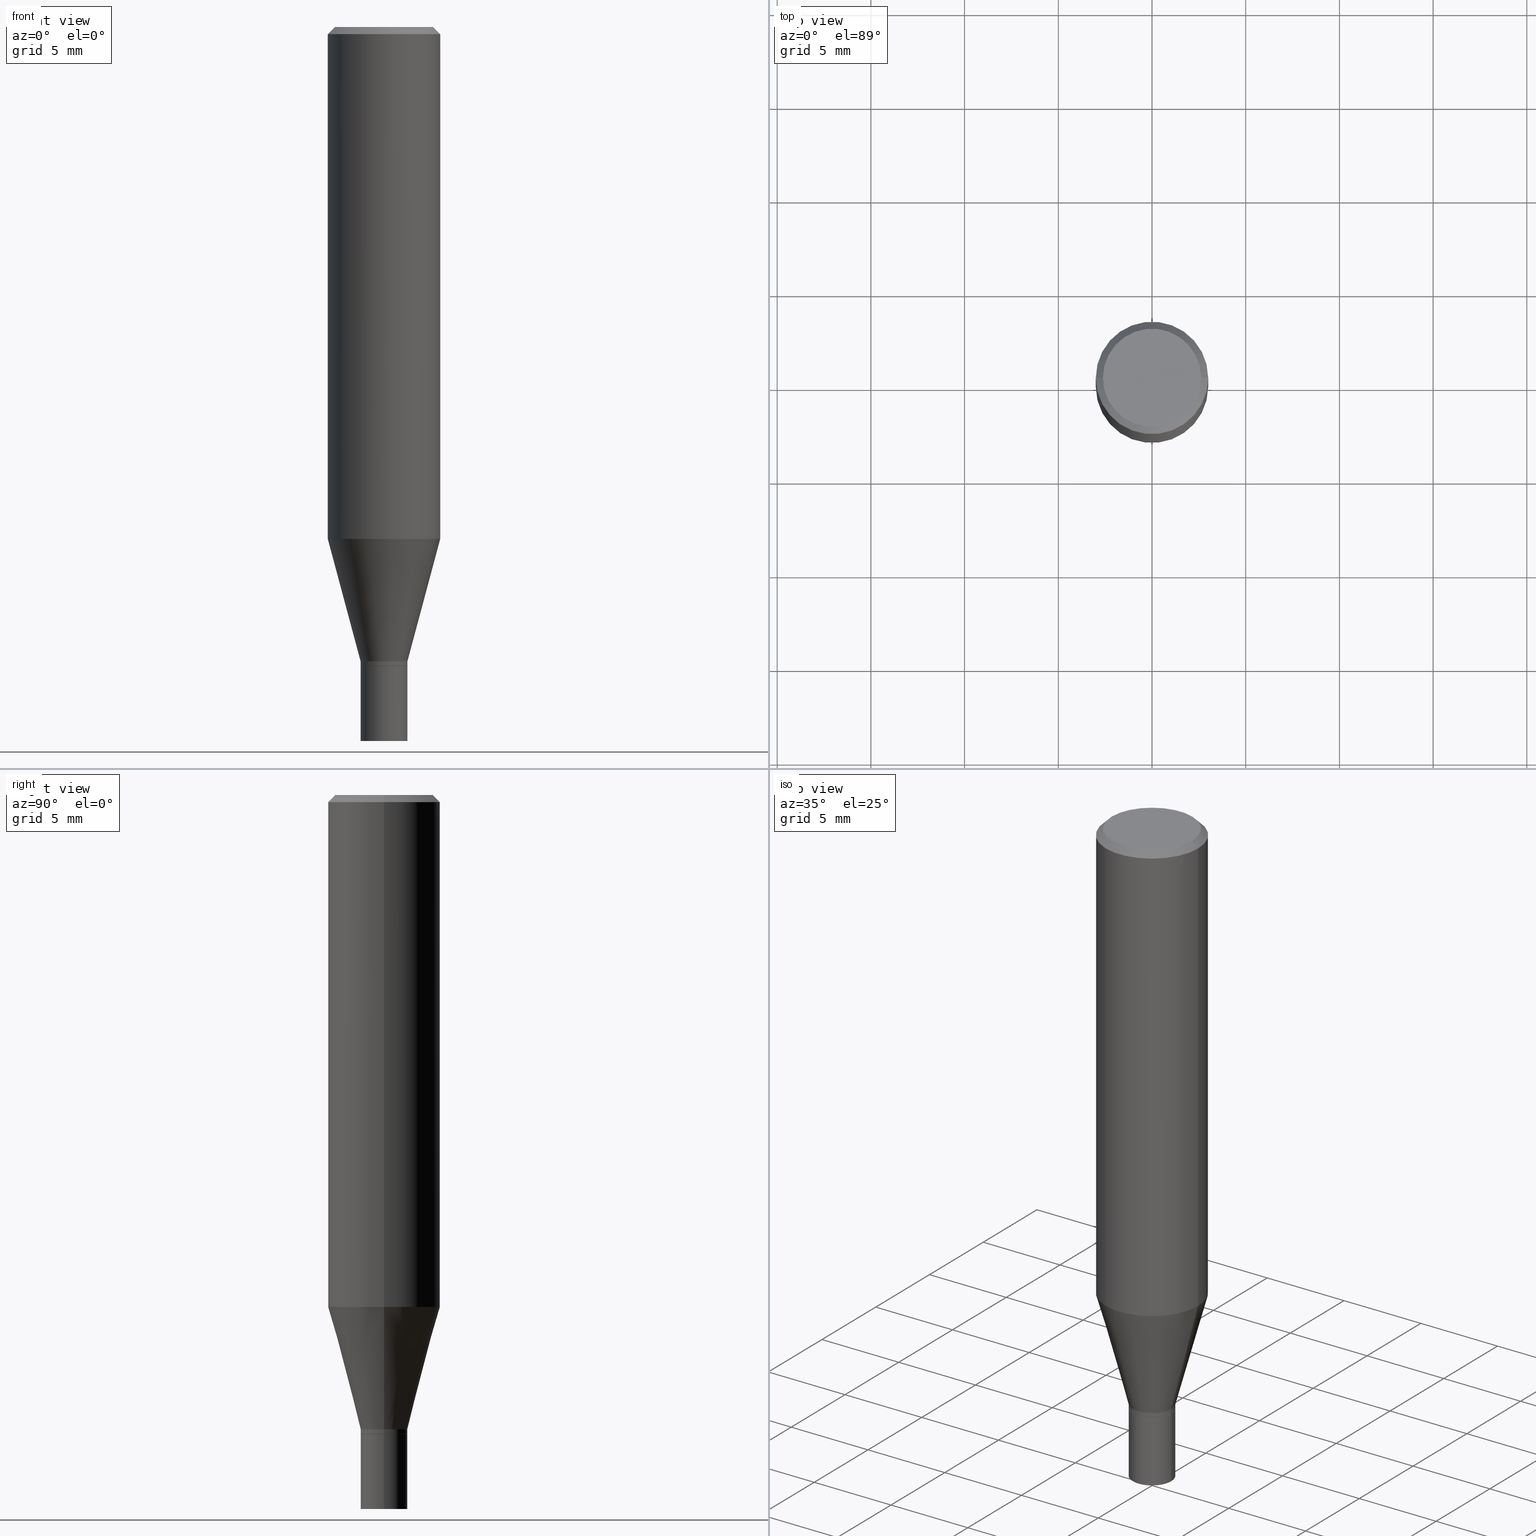
[diagram: canonical four-view strip — front | top / right | iso, engineering-drawing reading convention]
A machine part, canonical four-view strip (front | top / right | iso — engineering-drawing reading convention). The complete STEP part file that produces these views, byte-faithful:
ISO-10303-21;
HEADER;
FILE_DESCRIPTION (( 'STEP AP203' ),
    '1' );
FILE_NAME ('05336.STEP',
    '2024-03-14T18:09:04',
    ( '' ),
    ( '' ),
    'SwSTEP 2.0',
    'SolidWorks 2023',
    '' );
FILE_SCHEMA (( 'CONFIG_CONTROL_DESIGN' ));
ENDSEC;

DATA;
#1 = ORIENTED_EDGE ( 'NONE', *, *, #40, .F. ) ;
#2 = MANIFOLD_SOLID_BREP ( 'Body-Move/Copy2[2]', #251 ) ;
#3 = FACE_OUTER_BOUND ( 'NONE', #30, .T. ) ;
#4 = CARTESIAN_POINT ( 'NONE',  ( 0.000000000000000000, 0.000000000000000000, 0.000000000000000000 ) ) ;
#5 = CC_DESIGN_PERSON_AND_ORGANIZATION_ASSIGNMENT ( #220, #182, ( #24 ) ) ;
#6 = EDGE_CURVE ( 'NONE', #429, #231, #227, .T. ) ;
#7 = FACE_OUTER_BOUND ( 'NONE', #206, .T. ) ;
#8 = APPROVAL_DATE_TIME ( #214, #73 ) ;
#9 = ORIENTED_EDGE ( 'NONE', *, *, #216, .F. ) ;
#10 = APPLICATION_PROTOCOL_DEFINITION ( 'international standard', 'config_control_design', 1994, #336 ) ;
#11 = VECTOR ( 'NONE', #34, 39.37007874015748143 ) ;
#12 = CYLINDRICAL_SURFACE ( 'NONE', #141, 0.04920000000000000068 ) ;
#13 = CIRCLE ( 'NONE', #218, 0.1180999999999999966 ) ;
#14 = PERSON_AND_ORGANIZATION ( #376, #135 ) ;
#15 = PLANE ( 'NONE',  #313 ) ;
#16 = PERSON_AND_ORGANIZATION ( #376, #135 ) ;
#17 = DIRECTION ( 'NONE',  ( 1.000000000000000000, -6.982962677686273810E-15, 0.000000000000000000 ) ) ;
#18 = CARTESIAN_POINT ( 'NONE',  ( 3.283041872303546419E-29, -4.687313697396923253E-15, -1.342500000000000249 ) ) ;
#19 = VECTOR ( 'NONE', #275, 39.37007874015748143 ) ;
#20 = EDGE_LOOP ( 'NONE', ( #60, #280 ) ) ;
#21 = CC_DESIGN_DATE_AND_TIME_ASSIGNMENT ( #442, #262, ( #312 ) ) ;
#22 = CARTESIAN_POINT ( 'NONE',  ( 3.668203209277705088E-31, -5.237222008264718399E-17, -0.01499999999999999944 ) ) ;
#23 = DIRECTION ( 'NONE',  ( -2.445468806185136597E-29, 3.491481338843145583E-15, 1.000000000000000000 ) ) ;
#24 = PRODUCT ( '05336', '05336', '', ( #253 ) ) ;
#25 = APPROVAL_PERSON_ORGANIZATION ( #258, #73, #409 ) ;
#26 = ADVANCED_FACE ( 'NONE', ( #74 ), #12, .T. ) ;
#27 = DIRECTION ( 'NONE',  ( -0.2588190451025214611, 5.211531920934551042E-15, 0.9659258262890682012 ) ) ;
#28 = ORIENTED_EDGE ( 'NONE', *, *, #133, .T. ) ;
#29 = DIRECTION ( 'NONE',  ( -2.445468806185136877E-29, 3.491481338843145188E-15, 1.000000000000000000 ) ) ;
#30 = EDGE_LOOP ( 'NONE', ( #260, #422, #28, #124 ) ) ;
#31 = DIRECTION ( 'NONE',  ( -2.445468806185136597E-29, 3.491481338843145583E-15, 1.000000000000000000 ) ) ;
#32 = EDGE_CURVE ( 'NONE', #371, #458, #181, .T. ) ;
#33 = ORIENTED_EDGE ( 'NONE', *, *, #32, .F. ) ;
#34 = DIRECTION ( 'NONE',  ( -2.445468806185136877E-29, 3.491481338843145188E-15, 1.000000000000000000 ) ) ;
#35 = EDGE_LOOP ( 'NONE', ( #94, #173, #130, #1 ) ) ;
#36 = CARTESIAN_POINT ( 'NONE',  ( 3.283041872303546419E-29, -4.687313697396923253E-15, -1.342500000000000249 ) ) ;
#37 = CARTESIAN_POINT ( 'NONE',  ( 3.668203209277705088E-31, -5.237222008264718399E-17, -0.01499999999999999944 ) ) ;
#38 = ADVANCED_FACE ( 'NONE', ( #7 ), #433, .F. ) ;
#39 = AXIS2_PLACEMENT_3D ( 'NONE', #171, #233, #434 ) ;
#40 = EDGE_CURVE ( 'NONE', #231, #429, #288, .T. ) ;
#41 = DIRECTION ( 'NONE',  ( -2.445468806185136597E-29, 3.491481338843145583E-15, 1.000000000000000000 ) ) ;
#42 = CARTESIAN_POINT ( 'NONE',  ( -0.04919999999999991741, 3.495870259939687046E-16, -2.420116064405409213E-30 ) ) ;
#43 = COORDINATED_UNIVERSAL_TIME_OFFSET ( 5, 0, .BEHIND. ) ;
#44 = DIRECTION ( 'NONE',  ( -2.445468806185136597E-29, 3.491481338843145583E-15, 1.000000000000000000 ) ) ;
#45 = ADVANCED_FACE ( 'NONE', ( #207 ), #143, .T. ) ;
#46 = LOCAL_TIME ( 14, 9, 4.000000000000000000, #147 ) ;
#47 = DIRECTION ( 'NONE',  ( 0.7071067811865656694, -2.468850131082446387E-15, 0.7071067811865294761 ) ) ;
#48 = CONICAL_SURFACE ( 'NONE', #305, 0.04919999999999991741, 0.2617993877991501295 ) ;
#49 = PERSON_AND_ORGANIZATION ( #376, #135 ) ;
#50 = DIRECTION ( 'NONE',  ( 2.445468806185136597E-29, -3.491481338843145583E-15, -1.000000000000000000 ) ) ;
#51 = LINE ( 'NONE', #292, #430 ) ;
#52 = ORIENTED_EDGE ( 'NONE', *, *, #108, .F. ) ;
#53 = ADVANCED_FACE ( 'NONE', ( #149 ), #398, .T. ) ;
#54 = DIRECTION ( 'NONE',  ( 2.438088387897960049E-29, -3.491481338843145188E-15, -1.000000000000000000 ) ) ;
#55 = CC_DESIGN_APPROVAL ( #240, ( #62 ) ) ;
#56 = ORIENTED_EDGE ( 'NONE', *, *, #32, .T. ) ;
#57 = CONICAL_SURFACE ( 'NONE', #105, 0.1180999999999999966, 0.7853981633974160825 ) ;
#58 = DIRECTION ( 'NONE',  ( -2.445468806185136597E-29, 3.491481338843145583E-15, 1.000000000000000000 ) ) ;
#59 = DIRECTION ( 'NONE',  ( 1.000000000000000000, -6.982962677686261977E-15, 0.000000000000000000 ) ) ;
#60 = ORIENTED_EDGE ( 'NONE', *, *, #177, .F. ) ;
#61 = PLANE ( 'NONE',  #437 ) ;
#62 = SECURITY_CLASSIFICATION ( '', '', #112 ) ;
#63 = ORIENTED_EDGE ( 'NONE', *, *, #177, .T. ) ;
#64 = CARTESIAN_POINT ( 'NONE',  ( -0.04919999999999992435, -4.335980930733533094E-15, -1.342000000000000304 ) ) ;
#65 = ORIENTED_EDGE ( 'NONE', *, *, #340, .T. ) ;
#66 = CARTESIAN_POINT ( 'NONE',  ( 0.04919999999999991741, -4.995960647750656128E-15, -1.332500000000000018 ) ) ;
#67 = EDGE_LOOP ( 'NONE', ( #386, #96, #419, #180 ) ) ;
#68 = VERTEX_POINT ( 'NONE', #359 ) ;
#69 = AXIS2_PLACEMENT_3D ( 'NONE', #286, #249, #114 ) ;
#70 = CONICAL_SURFACE ( 'NONE', #296, 0.04870000000000000023, 0.7853981633974739252 ) ;
#71 = CIRCLE ( 'NONE', #69, 0.04870000000000000023 ) ;
#72 = VERTEX_POINT ( 'NONE', #435 ) ;
#73 = APPROVAL ( #436, 'UNSPECIFIED' ) ;
#74 = FACE_OUTER_BOUND ( 'NONE', #35, .T. ) ;
#75 = ADVANCED_FACE ( 'NONE', ( #111 ), #261, .T. ) ;
#76 = DIRECTION ( 'NONE',  ( 1.000000000000000000, -6.982962677686266711E-15, 4.876176775795935793E-29 ) ) ;
#77 = CC_DESIGN_SECURITY_CLASSIFICATION ( #62, ( #211 ) ) ;
#78 = PERSON_AND_ORGANIZATION ( #376, #135 ) ;
#79 = DIRECTION ( 'NONE',  ( 1.000000000000000000, -6.982962677686272233E-15, 0.000000000000000000 ) ) ;
#80 = COORDINATED_UNIVERSAL_TIME_OFFSET ( 5, 0, .BEHIND. ) ;
#81 = EDGE_CURVE ( 'NONE', #139, #204, #303, .T. ) ;
#82 = CARTESIAN_POINT ( 'NONE',  ( 3.668203209277705088E-31, -5.237222008264718399E-17, -0.01499999999999999944 ) ) ;
#83 = DIRECTION ( 'NONE',  ( -2.445468806185136597E-29, 3.491481338843145583E-15, 1.000000000000000000 ) ) ;
#84 = APPROVAL_STATUS ( 'not_yet_approved' ) ;
#85 = PLANE ( 'NONE',  #174 ) ;
#86 = DATE_AND_TIME ( #144, #120 ) ;
#87 = DIRECTION ( 'NONE',  ( -2.445468806185136597E-29, 3.491481338843145583E-15, 1.000000000000000000 ) ) ;
#88 = DIRECTION ( 'NONE',  ( 1.000000000000000000, -6.982962677686265133E-15, 0.000000000000000000 ) ) ;
#89 = PRODUCT_RELATED_PRODUCT_CATEGORY ( 'detail', '', ( #24 ) ) ;
#90 = CARTESIAN_POINT ( 'NONE',  ( -2.356111900284270779E-44, 3.363903359250623461E-30, 9.634602143871708828E-16 ) ) ;
#91 = CC_DESIGN_APPROVAL ( #403, ( #312 ) ) ;
#92 = AXIS2_PLACEMENT_3D ( 'NONE', #438, #41, #217 ) ;
#93 = DIRECTION ( 'NONE',  ( -2.445468806185136597E-29, 3.491481338843145583E-15, 1.000000000000000000 ) ) ;
#94 = ORIENTED_EDGE ( 'NONE', *, *, #340, .F. ) ;
#95 = CARTESIAN_POINT ( 'NONE',  ( -0.04870000000000000023, -4.341279385081754708E-15, -1.342500000000000249 ) ) ;
#96 = ORIENTED_EDGE ( 'NONE', *, *, #423, .T. ) ;
#97 = DIRECTION ( 'NONE',  ( 1.000000000000000000, -6.982962677686266711E-15, 4.876176775795935793E-29 ) ) ;
#98 = VECTOR ( 'NONE', #27, 39.37007874015747433 ) ;
#99 = ORIENTED_EDGE ( 'NONE', *, *, #465, .F. ) ;
#100 = DIRECTION ( 'NONE',  ( 1.000000000000000000, -6.982962677686272233E-15, 0.000000000000000000 ) ) ;
#101 = ORIENTED_EDGE ( 'NONE', *, *, #334, .F. ) ;
#102 =( CONVERSION_BASED_UNIT ( 'INCH', #425 ) LENGTH_UNIT ( ) NAMED_UNIT ( #107 ) );
#103 = ORIENTED_EDGE ( 'NONE', *, *, #443, .F. ) ;
#104 = ORIENTED_EDGE ( 'NONE', *, *, #216, .T. ) ;
#105 = AXIS2_PLACEMENT_3D ( 'NONE', #37, #254, #400 ) ;
#106 = VECTOR ( 'NONE', #294, 39.37007874015748143 ) ;
#107 = DIMENSIONAL_EXPONENTS ( 1.000000000000000000, 0.000000000000000000, 0.000000000000000000, 0.000000000000000000, 0.000000000000000000, 0.000000000000000000, 0.000000000000000000 ) ;
#108 = EDGE_CURVE ( 'NONE', #72, #337, #71, .T. ) ;
#109 = CARTESIAN_POINT ( 'NONE',  ( 0.000000000000000000, 0.000000000000000000, 0.000000000000000000 ) ) ;
#110 = DIRECTION ( 'NONE',  ( -2.445468806185136597E-29, 3.491481338843145583E-15, 1.000000000000000000 ) ) ;
#111 = FACE_OUTER_BOUND ( 'NONE', #264, .T. ) ;
#112 = SECURITY_CLASSIFICATION_LEVEL ( 'unclassified' ) ;
#113 = VECTOR ( 'NONE', #145, 39.37007874015748143 ) ;
#114 = DIRECTION ( 'NONE',  ( 1.000000000000000000, -6.982962677686271444E-15, 0.000000000000000000 ) ) ;
#115 = PERSON_AND_ORGANIZATION_ROLE ( 'creator' ) ;
#116 = CARTESIAN_POINT ( 'NONE',  ( 0.04919999999999992435, -5.029129720469666274E-15, -1.342000000000000304 ) ) ;
#117 = CARTESIAN_POINT ( 'NONE',  ( 0.000000000000000000, 0.000000000000000000, 0.000000000000000000 ) ) ;
#118 = DIRECTION ( 'NONE',  ( -2.445468806185136597E-29, 3.491481338843145583E-15, 1.000000000000000000 ) ) ;
#119 = ORIENTED_EDGE ( 'NONE', *, *, #393, .F. ) ;
#120 = LOCAL_TIME ( 14, 9, 4.000000000000000000, #43 ) ;
#121 = CARTESIAN_POINT ( 'NONE',  ( 3.576687321579069994E-29, -5.368277968210015545E-15, -1.500000000000000222 ) ) ;
#122 = ADVANCED_FACE ( 'NONE', ( #3 ), #57, .T. ) ;
#123 = DIRECTION ( 'NONE',  ( -2.445468806185136597E-29, 3.491481338843145583E-15, 1.000000000000000000 ) ) ;
#124 = ORIENTED_EDGE ( 'NONE', *, *, #271, .F. ) ;
#125 = DIRECTION ( 'NONE',  ( -2.445468806185136877E-29, 3.491481338843145188E-15, 1.000000000000000000 ) ) ;
#126 = AXIS2_PLACEMENT_3D ( 'NONE', #396, #318, #432 ) ;
#127 = CARTESIAN_POINT ( 'NONE',  ( 3.258587184241694874E-29, -4.652398884008491604E-15, -1.332500000000000018 ) ) ;
#128 = AXIS2_PLACEMENT_3D ( 'NONE', #421, #169, #100 ) ;
#129 = CARTESIAN_POINT ( 'NONE',  ( 0.04919999999999991741, -4.995960647750656128E-15, -1.332500000000000018 ) ) ;
#130 = ORIENTED_EDGE ( 'NONE', *, *, #465, .T. ) ;
#131 = CARTESIAN_POINT ( 'NONE',  ( 0.04920000000000000068, -3.435617637421643269E-16, 2.399078973691600472E-30 ) ) ;
#132 = ORIENTED_EDGE ( 'NONE', *, *, #271, .T. ) ;
#133 = EDGE_CURVE ( 'NONE', #170, #311, #252, .T. ) ;
#134 = LINE ( 'NONE', #195, #98 ) ;
#135 = ORGANIZATION ( 'UNSPECIFIED', 'UNSPECIFIED', '' ) ;
#136 = VERTEX_POINT ( 'NONE', #140 ) ;
#137 = DIRECTION ( 'NONE',  ( 0.2588190451025214611, 1.565188264969621573E-15, 0.9659258262890682012 ) ) ;
#138 = ORIENTED_EDGE ( 'NONE', *, *, #157, .T. ) ;
#139 = VERTEX_POINT ( 'NONE', #179 ) ;
#140 = CARTESIAN_POINT ( 'NONE',  ( -0.1031000000000000111, 7.461295621107793201E-16, 9.634602143871657552E-16 ) ) ;
#141 = AXIS2_PLACEMENT_3D ( 'NONE', #4, #142, #76 ) ;
#142 = DIRECTION ( 'NONE',  ( -2.445468806185136597E-29, 3.491481338843145583E-15, 1.000000000000000000 ) ) ;
#143 = CYLINDRICAL_SURFACE ( 'NONE', #366, 0.04920000000000000068 ) ;
#144 = CALENDAR_DATE ( 2024, 14, 3 ) ;
#145 = DIRECTION ( 'NONE',  ( -2.445468806185136877E-29, 3.491481338843145188E-15, 1.000000000000000000 ) ) ;
#146 = AXIS2_PLACEMENT_3D ( 'NONE', #412, #58, #17 ) ;
#147 = COORDINATED_UNIVERSAL_TIME_OFFSET ( 5, 0, .BEHIND. ) ;
#148 = AXIS2_PLACEMENT_3D ( 'NONE', #328, #93, #338 ) ;
#149 = FACE_OUTER_BOUND ( 'NONE', #411, .T. ) ;
#150 = CALENDAR_DATE ( 2024, 14, 3 ) ;
#151 = DIRECTION ( 'NONE',  ( 1.000000000000000000, -6.982962677686265922E-15, 4.876176775795935793E-29 ) ) ;
#152 = DATE_TIME_ROLE ( 'classification_date' ) ;
#153 = DIRECTION ( 'NONE',  ( -0.7071067811865247021, 2.468850131082017641E-15, -0.7071067811865703323 ) ) ;
#154 =( GEOMETRIC_REPRESENTATION_CONTEXT ( 3 ) GLOBAL_UNCERTAINTY_ASSIGNED_CONTEXT ( ( #158 ) ) GLOBAL_UNIT_ASSIGNED_CONTEXT ( ( #102, #343, #284 ) ) REPRESENTATION_CONTEXT ( 'NONE', 'WORKASPACE' ) );
#155 = LINE ( 'NONE', #302, #106 ) ;
#156 = DIRECTION ( 'NONE',  ( 1.000000000000000000, -6.982962677686266711E-15, 0.000000000000000000 ) ) ;
#157 = EDGE_CURVE ( 'NONE', #371, #164, #161, .T. ) ;
#158 = UNCERTAINTY_MEASURE_WITH_UNIT (LENGTH_MEASURE( 1.000000000000000082E-05 ), #102, 'distance_accuracy_value', 'NONE');
#159 = CARTESIAN_POINT ( 'NONE',  ( -0.04870000000000000023, -4.338630157907644295E-15, -1.342500000000000249 ) ) ;
#160 = MANIFOLD_SOLID_BREP ( 'Body-Move/Copy2[1]', #205 ) ;
#161 = CIRCLE ( 'NONE', #324, 0.04919999999999992435 ) ;
#162 = LINE ( 'NONE', #390, #415 ) ;
#163 = CONICAL_SURFACE ( 'NONE', #325, 0.04870000000000000023, 0.7853981633974739252 ) ;
#164 = VERTEX_POINT ( 'NONE', #116 ) ;
#165 = AXIS2_PLACEMENT_3D ( 'NONE', #259, #414, #330 ) ;
#166 = DIRECTION ( 'NONE',  ( -2.445468806185136597E-29, 3.491481338843145583E-15, 1.000000000000000000 ) ) ;
#167 = ORIENTED_EDGE ( 'NONE', *, *, #247, .T. ) ;
#168 = ADVANCED_FACE ( 'NONE', ( #283 ), #209, .T. ) ;
#169 = DIRECTION ( 'NONE',  ( -2.445468806185136597E-29, 3.491481338843145583E-15, 1.000000000000000000 ) ) ;
#170 = VERTEX_POINT ( 'NONE', #362 ) ;
#171 = CARTESIAN_POINT ( 'NONE',  ( -2.356111900284270779E-44, 3.363903359250623461E-30, 9.634602143871708828E-16 ) ) ;
#172 = AXIS2_PLACEMENT_3D ( 'NONE', #175, #31, #59 ) ;
#173 = ORIENTED_EDGE ( 'NONE', *, *, #372, .T. ) ;
#174 = AXIS2_PLACEMENT_3D ( 'NONE', #263, #54, #446 ) ;
#175 = CARTESIAN_POINT ( 'NONE',  ( 3.668203209277704895E-29, -5.237222008264718177E-15, -1.500000000000000222 ) ) ;
#176 = ORIENTED_EDGE ( 'NONE', *, *, #133, .F. ) ;
#177 = EDGE_CURVE ( 'NONE', #350, #68, #392, .T. ) ;
#178 = DIRECTION ( 'NONE',  ( 1.000000000000000000, -6.982962677686273810E-15, 0.000000000000000000 ) ) ;
#179 = CARTESIAN_POINT ( 'NONE',  ( 0.1180999999999999966, -4.579293198051621365E-15, -1.075361699358504897 ) ) ;
#180 = ORIENTED_EDGE ( 'NONE', *, *, #304, .F. ) ;
#181 = LINE ( 'NONE', #42, #113 ) ;
#182 = PERSON_AND_ORGANIZATION_ROLE ( 'design_owner' ) ;
#183 = DIRECTION ( 'NONE',  ( -2.445468806185136597E-29, 3.491481338843145583E-15, 1.000000000000000000 ) ) ;
#184 = APPROVAL_PERSON_ORGANIZATION ( #404, #403, #440 ) ;
#185 = FACE_OUTER_BOUND ( 'NONE', #236, .T. ) ;
#186 = ADVANCED_FACE ( 'NONE', ( #185 ), #85, .F. ) ;
#187 = PERSON_AND_ORGANIZATION_ROLE ( 'creator' ) ;
#188 = DIRECTION ( 'NONE',  ( -2.445468806185136877E-29, 3.491481338843145188E-15, 1.000000000000000000 ) ) ;
#189 = COORDINATED_UNIVERSAL_TIME_OFFSET ( 5, 0, .BEHIND. ) ;
#190 = CARTESIAN_POINT ( 'NONE',  ( 3.668203209277705088E-31, -5.237222008264718399E-17, -0.01499999999999999944 ) ) ;
#191 = DIRECTION ( 'NONE',  ( 1.000000000000000000, -6.982962677686261977E-15, 0.000000000000000000 ) ) ;
#192 = ORIENTED_EDGE ( 'NONE', *, *, #379, .T. ) ;
#193 = CC_DESIGN_DATE_AND_TIME_ASSIGNMENT ( #86, #152, ( #62 ) ) ;
#194 = CARTESIAN_POINT ( 'NONE',  ( 2.629763491147462356E-29, -3.754605305816872313E-15, -1.075361699358504897 ) ) ;
#195 = CARTESIAN_POINT ( 'NONE',  ( -0.04919999999999991741, -4.302811858014522949E-15, -1.332500000000000018 ) ) ;
#196 = EDGE_CURVE ( 'NONE', #139, #170, #51, .T. ) ;
#197 = ORIENTED_EDGE ( 'NONE', *, *, #428, .T. ) ;
#198 = EDGE_CURVE ( 'NONE', #458, #389, #354, .T. ) ;
#199 = CARTESIAN_POINT ( 'NONE',  ( 3.283041872303546419E-29, -4.687313697396923253E-15, -1.342500000000000249 ) ) ;
#200 = ORIENTED_EDGE ( 'NONE', *, *, #196, .F. ) ;
#201 = FACE_OUTER_BOUND ( 'NONE', #274, .T. ) ;
#202 = ORIENTED_EDGE ( 'NONE', *, *, #40, .T. ) ;
#203 = CIRCLE ( 'NONE', #226, 0.04870000000000000023 ) ;
#204 = VERTEX_POINT ( 'NONE', #406 ) ;
#205 = CLOSED_SHELL ( 'NONE', ( #45, #342, #26, #186 ) ) ;
#206 = EDGE_LOOP ( 'NONE', ( #317, #310 ) ) ;
#207 = FACE_OUTER_BOUND ( 'NONE', #426, .T. ) ;
#208 = CC_DESIGN_PERSON_AND_ORGANIZATION_ASSIGNMENT ( #14, #115, ( #312 ) ) ;
#209 = CYLINDRICAL_SURFACE ( 'NONE', #439, 0.1180999999999999966 ) ;
#210 = ADVANCED_FACE ( 'NONE', ( #370 ), #346, .T. ) ;
#211 = PRODUCT_DEFINITION_FORMATION_WITH_SPECIFIED_SOURCE ( 'ANY', '', #24, .NOT_KNOWN. ) ;
#212 = DIRECTION ( 'NONE',  ( 0.000000000000000000, 0.000000000000000000, 1.000000000000000000 ) ) ;
#213 = CARTESIAN_POINT ( 'NONE',  ( 3.281819137900453618E-29, -4.685567956727501750E-15, -1.342000000000000304 ) ) ;
#214 = DATE_AND_TIME ( #150, #452 ) ;
#215 = CARTESIAN_POINT ( 'NONE',  ( 7.199434520694541042E-16, 0.1031000000000000111, 1.217583811588571567E-16 ) ) ;
#216 = EDGE_CURVE ( 'NONE', #311, #170, #13, .T. ) ;
#217 = DIRECTION ( 'NONE',  ( 1.000000000000000000, -6.982962677686261977E-15, 0.000000000000000000 ) ) ;
#218 = AXIS2_PLACEMENT_3D ( 'NONE', #22, #123, #156 ) ;
#219 = VECTOR ( 'NONE', #29, 39.37007874015748143 ) ;
#220 = PERSON_AND_ORGANIZATION ( #376, #135 ) ;
#221 = CIRCLE ( 'NONE', #146, 0.04919999999999991741 ) ;
#222 = DIRECTION ( 'NONE',  ( -2.445468806185136597E-29, 3.491481338843145583E-15, 1.000000000000000000 ) ) ;
#223 = FACE_OUTER_BOUND ( 'NONE', #273, .T. ) ;
#224 = VERTEX_POINT ( 'NONE', #444 ) ;
#225 = DIRECTION ( 'NONE',  ( 1.000000000000000000, -6.982962677686271444E-15, 0.000000000000000000 ) ) ;
#226 = AXIS2_PLACEMENT_3D ( 'NONE', #278, #166, #230 ) ;
#227 = CIRCLE ( 'NONE', #345, 0.04920000000000000068 ) ;
#228 = FACE_OUTER_BOUND ( 'NONE', #344, .T. ) ;
#229 = CYLINDRICAL_SURFACE ( 'NONE', #268, 0.04919999999999991741 ) ;
#230 = DIRECTION ( 'NONE',  ( 1.000000000000000000, -6.982962677686271444E-15, 0.000000000000000000 ) ) ;
#231 = VERTEX_POINT ( 'NONE', #267 ) ;
#232 = CIRCLE ( 'NONE', #39, 0.1031000000000000111 ) ;
#233 = DIRECTION ( 'NONE',  ( -2.445468806185136597E-29, 3.491481338843145583E-15, 1.000000000000000000 ) ) ;
#234 = ORIENTED_EDGE ( 'NONE', *, *, #428, .F. ) ;
#235 = DIRECTION ( 'NONE',  ( -2.438088387897960049E-29, 3.491481338843145188E-15, 1.000000000000000000 ) ) ;
#236 = EDGE_LOOP ( 'NONE', ( #348, #202 ) ) ;
#237 = EDGE_CURVE ( 'NONE', #224, #136, #326, .T. ) ;
#238 = DIRECTION ( 'NONE',  ( 1.000000000000000000, -6.982962677686265922E-15, 4.876176775795935793E-29 ) ) ;
#239 = ORIENTED_EDGE ( 'NONE', *, *, #304, .T. ) ;
#240 = APPROVAL ( #255, 'UNSPECIFIED' ) ;
#241 = VECTOR ( 'NONE', #188, 39.37007874015748143 ) ;
#242 = APPROVAL_PERSON_ORGANIZATION ( #78, #240, #293 ) ;
#243 = ORIENTED_EDGE ( 'NONE', *, *, #6, .F. ) ;
#244 = AXIS2_PLACEMENT_3D ( 'NONE', #109, #319, #402 ) ;
#245 = DIRECTION ( 'NONE',  ( 2.438088387897960049E-29, -3.491481338843145188E-15, -1.000000000000000000 ) ) ;
#246 = DIRECTION ( 'NONE',  ( 1.000000000000000000, -6.982962677686266711E-15, 4.876176775795936353E-29 ) ) ;
#247 = EDGE_CURVE ( 'NONE', #164, #389, #417, .T. ) ;
#248 = DATE_AND_TIME ( #297, #46 ) ;
#249 = DIRECTION ( 'NONE',  ( -2.445468806185136597E-29, 3.491481338843145583E-15, 1.000000000000000000 ) ) ;
#250 = LOCAL_TIME ( 14, 9, 4.000000000000000000, #364 ) ;
#251 = CLOSED_SHELL ( 'NONE', ( #287, #456, #122, #168, #75, #256, #53, #210, #38, #420, #322, #408 ) ) ;
#252 = CIRCLE ( 'NONE', #315, 0.1180999999999999966 ) ;
#253 = MECHANICAL_CONTEXT ( 'NONE', #336, 'mechanical' ) ;
#254 = DIRECTION ( 'NONE',  ( 2.445468806185136597E-29, -3.491481338843145583E-15, -1.000000000000000000 ) ) ;
#255 = APPROVAL_STATUS ( 'not_yet_approved' ) ;
#256 = ADVANCED_FACE ( 'NONE', ( #341 ), #48, .T. ) ;
#257 = CARTESIAN_POINT ( 'NONE',  ( 0.000000000000000000, 0.000000000000000000, 0.000000000000000000 ) ) ;
#258 = PERSON_AND_ORGANIZATION ( #376, #135 ) ;
#259 = CARTESIAN_POINT ( 'NONE',  ( 0.000000000000000000, 0.000000000000000000, 0.000000000000000000 ) ) ;
#260 = ORIENTED_EDGE ( 'NONE', *, *, #237, .F. ) ;
#261 = CONICAL_SURFACE ( 'NONE', #462, 0.04919999999999991741, 0.2617993877991501295 ) ;
#262 = DATE_TIME_ROLE ( 'creation_date' ) ;
#263 = CARTESIAN_POINT ( 'NONE',  ( 3.435617637421970646E-16, 0.04919999999999531692, -1.342500000000000471 ) ) ;
#264 = EDGE_LOOP ( 'NONE', ( #352, #266, #355, #391 ) ) ;
#265 = CARTESIAN_POINT ( 'NONE',  ( -0.1180999999999999966, 7.723156721521009862E-16, -0.01499999999999999944 ) ) ;
#266 = ORIENTED_EDGE ( 'NONE', *, *, #393, .T. ) ;
#267 = CARTESIAN_POINT ( 'NONE',  ( -0.04920000000000000068, -4.612680826836852060E-15, -1.342500000000000249 ) ) ;
#268 = AXIS2_PLACEMENT_3D ( 'NONE', #351, #272, #97 ) ;
#269 = AXIS2_PLACEMENT_3D ( 'NONE', #90, #118, #410 ) ;
#270 = FACE_OUTER_BOUND ( 'NONE', #20, .T. ) ;
#271 = EDGE_CURVE ( 'NONE', #136, #311, #301, .T. ) ;
#272 = DIRECTION ( 'NONE',  ( -2.445468806185136597E-29, 3.491481338843145583E-15, 1.000000000000000000 ) ) ;
#273 = EDGE_LOOP ( 'NONE', ( #295, #56, #383, #395 ) ) ;
#274 = EDGE_LOOP ( 'NONE', ( #33, #138, #167, #299 ) ) ;
#275 = DIRECTION ( 'NONE',  ( -0.7071067811865656694, 7.493145998870420424E-15, 0.7071067811865294761 ) ) ;
#276 = ORIENTED_EDGE ( 'NONE', *, *, #196, .T. ) ;
#277 = CC_DESIGN_PERSON_AND_ORGANIZATION_ASSIGNMENT ( #16, #373, ( #62 ) ) ;
#278 = CARTESIAN_POINT ( 'NONE',  ( 3.283041872303546419E-29, -4.687313697396923253E-15, -1.342500000000000249 ) ) ;
#279 = EDGE_LOOP ( 'NONE', ( #52, #103 ) ) ;
#280 = ORIENTED_EDGE ( 'NONE', *, *, #372, .F. ) ;
#281 = DIRECTION ( 'NONE',  ( -2.445468806185136597E-29, 3.491481338843145583E-15, 1.000000000000000000 ) ) ;
#282 = AXIS2_PLACEMENT_3D ( 'NONE', #360, #222, #191 ) ;
#283 = FACE_OUTER_BOUND ( 'NONE', #331, .T. ) ;
#284 =( NAMED_UNIT ( * ) SI_UNIT ( $, .STERADIAN. ) SOLID_ANGLE_UNIT ( ) );
#285 = CARTESIAN_POINT ( 'NONE',  ( 0.000000000000000000, 0.000000000000000000, 0.000000000000000000 ) ) ;
#286 = CARTESIAN_POINT ( 'NONE',  ( 3.283041872303546419E-29, -4.687313697396923253E-15, -1.342500000000000249 ) ) ;
#287 = ADVANCED_FACE ( 'NONE', ( #223 ), #450, .T. ) ;
#288 = CIRCLE ( 'NONE', #92, 0.04920000000000000068 ) ;
#289 = APPROVAL_DATE_TIME ( #248, #240 ) ;
#290 = CARTESIAN_POINT ( 'NONE',  ( 3.258587184241694874E-29, -4.652398884008491604E-15, -1.332500000000000018 ) ) ;
#291 = DIRECTION ( 'NONE',  ( 1.000000000000000000, 0.000000000000000000, 0.000000000000000000 ) ) ;
#292 = CARTESIAN_POINT ( 'NONE',  ( 0.1180999999999999966, -8.246878922347480654E-16, 5.758764772215000440E-30 ) ) ;
#293 = APPROVAL_ROLE ( '' ) ;
#294 = DIRECTION ( 'NONE',  ( -2.445468806185136877E-29, 3.491481338843145188E-15, 1.000000000000000000 ) ) ;
#295 = ORIENTED_EDGE ( 'NONE', *, *, #405, .T. ) ;
#296 = AXIS2_PLACEMENT_3D ( 'NONE', #199, #347, #466 ) ;
#297 = CALENDAR_DATE ( 2024, 14, 3 ) ;
#298 = DIRECTION ( 'NONE',  ( 1.000000000000000000, -6.982962677686273810E-15, 0.000000000000000000 ) ) ;
#299 = ORIENTED_EDGE ( 'NONE', *, *, #198, .F. ) ;
#300 = DESIGN_CONTEXT ( 'detailed design', #387, 'design' ) ;
#301 = LINE ( 'NONE', #265, #394 ) ;
#302 = CARTESIAN_POINT ( 'NONE',  ( -0.04920000000000000068, 3.495870259939692963E-16, -2.420116064405413767E-30 ) ) ;
#303 = CIRCLE ( 'NONE', #126, 0.1180999999999999966 ) ;
#304 = EDGE_CURVE ( 'NONE', #72, #164, #335, .T. ) ;
#305 = AXIS2_PLACEMENT_3D ( 'NONE', #127, #87, #298 ) ;
#306 = LINE ( 'NONE', #129, #384 ) ;
#307 = ORIENTED_EDGE ( 'NONE', *, *, #356, .F. ) ;
#308 = CARTESIAN_POINT ( 'NONE',  ( -0.04919999999999991741, -3.609133096449358138E-15, -1.332500000000000018 ) ) ;
#309 = ADVANCED_BREP_SHAPE_REPRESENTATION ( '05336', ( #160, #2, #353 ), #154 ) ;
#310 = ORIENTED_EDGE ( 'NONE', *, *, #237, .T. ) ;
#311 = VERTEX_POINT ( 'NONE', #380 ) ;
#312 = PRODUCT_DEFINITION ( 'UNKNOWN', '', #211, #300 ) ;
#313 = AXIS2_PLACEMENT_3D ( 'NONE', #121, #377, #151 ) ;
#314 = FACE_OUTER_BOUND ( 'NONE', #279, .T. ) ;
#315 = AXIS2_PLACEMENT_3D ( 'NONE', #82, #183, #323 ) ;
#316 = ORIENTED_EDGE ( 'NONE', *, *, #198, .T. ) ;
#317 = ORIENTED_EDGE ( 'NONE', *, *, #358, .T. ) ;
#318 = DIRECTION ( 'NONE',  ( -2.445468806185136597E-29, 3.491481338843145583E-15, 1.000000000000000000 ) ) ;
#319 = DIRECTION ( 'NONE',  ( -2.445468806185136597E-29, 3.491481338843145583E-15, 1.000000000000000000 ) ) ;
#320 = ORIENTED_EDGE ( 'NONE', *, *, #358, .F. ) ;
#321 = DIRECTION ( 'NONE',  ( 1.000000000000000000, -6.982962677686261977E-15, 0.000000000000000000 ) ) ;
#322 = ADVANCED_FACE ( 'NONE', ( #228 ), #163, .T. ) ;
#323 = DIRECTION ( 'NONE',  ( 1.000000000000000000, -6.982962677686266711E-15, 0.000000000000000000 ) ) ;
#324 = AXIS2_PLACEMENT_3D ( 'NONE', #213, #441, #79 ) ;
#325 = AXIS2_PLACEMENT_3D ( 'NONE', #18, #448, #225 ) ;
#326 = CIRCLE ( 'NONE', #269, 0.1031000000000000111 ) ;
#327 = APPROVAL_DATE_TIME ( #369, #403 ) ;
#328 = CARTESIAN_POINT ( 'NONE',  ( 3.258587184241694874E-29, -4.652398884008491604E-15, -1.332500000000000018 ) ) ;
#329 = PERSON_AND_ORGANIZATION ( #376, #135 ) ;
#330 = DIRECTION ( 'NONE',  ( 1.000000000000000000, -6.982962677686266711E-15, 4.876176775795935793E-29 ) ) ;
#331 = EDGE_LOOP ( 'NONE', ( #357, #197, #176, #200 ) ) ;
#332 = EDGE_CURVE ( 'NONE', #389, #458, #221, .T. ) ;
#333 = CALENDAR_DATE ( 2024, 14, 3 ) ;
#334 = EDGE_CURVE ( 'NONE', #204, #139, #378, .T. ) ;
#335 = LINE ( 'NONE', #374, #368 ) ;
#336 = APPLICATION_CONTEXT ( 'configuration controlled 3d designs of mechanical parts and assemblies' ) ;
#337 = VERTEX_POINT ( 'NONE', #159 ) ;
#338 = DIRECTION ( 'NONE',  ( 1.000000000000000000, -6.982962677686273810E-15, 0.000000000000000000 ) ) ;
#339 = CC_DESIGN_PERSON_AND_ORGANIZATION_ASSIGNMENT ( #49, #187, ( #211 ) ) ;
#340 = EDGE_CURVE ( 'NONE', #68, #231, #155, .T. ) ;
#341 = FACE_OUTER_BOUND ( 'NONE', #460, .T. ) ;
#342 = ADVANCED_FACE ( 'NONE', ( #270 ), #15, .F. ) ;
#343 =( NAMED_UNIT ( * ) PLANE_ANGLE_UNIT ( ) SI_UNIT ( $, .RADIAN. ) );
#344 = EDGE_LOOP ( 'NONE', ( #455, #375, #239, #464 ) ) ;
#345 = AXIS2_PLACEMENT_3D ( 'NONE', #36, #281, #321 ) ;
#346 = CONICAL_SURFACE ( 'NONE', #416, 0.1180999999999999966, 0.7853981633974160825 ) ;
#347 = DIRECTION ( 'NONE',  ( -2.445468806185136597E-29, 3.491481338843145583E-15, 1.000000000000000000 ) ) ;
#348 = ORIENTED_EDGE ( 'NONE', *, *, #6, .T. ) ;
#349 = CARTESIAN_POINT ( 'NONE',  ( 0.04920000000000000068, -5.580783772006882701E-15, -1.500000000000000222 ) ) ;
#350 = VERTEX_POINT ( 'NONE', #349 ) ;
#351 = CARTESIAN_POINT ( 'NONE',  ( 0.000000000000000000, 0.000000000000000000, 0.000000000000000000 ) ) ;
#352 = ORIENTED_EDGE ( 'NONE', *, *, #332, .T. ) ;
#353 = AXIS2_PLACEMENT_3D ( 'NONE', #117, #212, #291 ) ;
#354 = CIRCLE ( 'NONE', #148, 0.04919999999999991741 ) ;
#355 = ORIENTED_EDGE ( 'NONE', *, *, #81, .F. ) ;
#356 = EDGE_CURVE ( 'NONE', #224, #170, #162, .T. ) ;
#357 = ORIENTED_EDGE ( 'NONE', *, *, #81, .T. ) ;
#358 = EDGE_CURVE ( 'NONE', #136, #224, #232, .T. ) ;
#359 = CARTESIAN_POINT ( 'NONE',  ( -0.04920000000000000068, -4.612680826836852060E-15, -1.500000000000000222 ) ) ;
#360 = CARTESIAN_POINT ( 'NONE',  ( 3.668203209277704895E-29, -5.237222008264718177E-15, -1.500000000000000222 ) ) ;
#361 = PERSON_AND_ORGANIZATION_ROLE ( 'design_supplier' ) ;
#362 = CARTESIAN_POINT ( 'NONE',  ( 0.1180999999999999966, -8.770601123173952432E-16, -0.01499999999999999944 ) ) ;
#363 = DIRECTION ( 'NONE',  ( 1.000000000000000000, -6.982962677686266711E-15, 4.876176775795935793E-29 ) ) ;
#364 = COORDINATED_UNIVERSAL_TIME_OFFSET ( 5, 0, .BEHIND. ) ;
#365 = DIRECTION ( 'NONE',  ( -1.000000000000000000, 6.982962677686266711E-15, 0.000000000000000000 ) ) ;
#366 = AXIS2_PLACEMENT_3D ( 'NONE', #285, #44, #363 ) ;
#367 = CIRCLE ( 'NONE', #172, 0.04920000000000000068 ) ;
#368 = VECTOR ( 'NONE', #47, 39.37007874015748143 ) ;
#369 = DATE_AND_TIME ( #333, #424 ) ;
#370 = FACE_OUTER_BOUND ( 'NONE', #427, .T. ) ;
#371 = VERTEX_POINT ( 'NONE', #64 ) ;
#372 = EDGE_CURVE ( 'NONE', #68, #350, #367, .T. ) ;
#373 = PERSON_AND_ORGANIZATION_ROLE ( 'classification_officer' ) ;
#374 = CARTESIAN_POINT ( 'NONE',  ( 0.04870000000000000023, -5.027383979800244770E-15, -1.342500000000000249 ) ) ;
#375 = ORIENTED_EDGE ( 'NONE', *, *, #443, .T. ) ;
#376 = PERSON ( 'UNSPECIFIED', 'UNSPECIFIED', 'UNSPECIFIED', ('UNSPECIFIED'), ('UNSPECIFIED'), ('UNSPECIFIED') ) ;
#377 = DIRECTION ( 'NONE',  ( -2.438088387897960049E-29, 3.491481338843145188E-15, 1.000000000000000000 ) ) ;
#378 = CIRCLE ( 'NONE', #461, 0.1180999999999999966 ) ;
#379 = EDGE_CURVE ( 'NONE', #389, #139, #306, .T. ) ;
#380 = CARTESIAN_POINT ( 'NONE',  ( -0.1180999999999999966, -1.064337792017081499E-15, -0.01499999999999999944 ) ) ;
#381 = LINE ( 'NONE', #454, #219 ) ;
#382 = FACE_OUTER_BOUND ( 'NONE', #67, .T. ) ;
#383 = ORIENTED_EDGE ( 'NONE', *, *, #332, .F. ) ;
#384 = VECTOR ( 'NONE', #137, 39.37007874015747433 ) ;
#385 = CARTESIAN_POINT ( 'NONE',  ( 3.283041872303546419E-29, -4.687313697396923253E-15, -1.342500000000000249 ) ) ;
#386 = ORIENTED_EDGE ( 'NONE', *, *, #108, .T. ) ;
#387 = APPLICATION_CONTEXT ( 'configuration controlled 3d designs of mechanical parts and assemblies' ) ;
#388 =( LENGTH_UNIT ( ) NAMED_UNIT ( * ) SI_UNIT ( $, .METRE. ) );
#389 = VERTEX_POINT ( 'NONE', #66 ) ;
#390 = CARTESIAN_POINT ( 'NONE',  ( 0.1180999999999999966, -8.625970336194650129E-16, -0.01499999999999999944 ) ) ;
#391 = ORIENTED_EDGE ( 'NONE', *, *, #379, .F. ) ;
#392 = CIRCLE ( 'NONE', #282, 0.04920000000000000068 ) ;
#393 = EDGE_CURVE ( 'NONE', #458, #204, #134, .T. ) ;
#394 = VECTOR ( 'NONE', #153, 39.37007874015748143 ) ;
#395 = ORIENTED_EDGE ( 'NONE', *, *, #247, .F. ) ;
#396 = CARTESIAN_POINT ( 'NONE',  ( 2.629763491147462356E-29, -3.754605305816872313E-15, -1.075361699358504897 ) ) ;
#397 = DIRECTION ( 'NONE',  ( -1.000000000000000000, 6.982962677686265922E-15, -4.876176775795935793E-29 ) ) ;
#398 = CYLINDRICAL_SURFACE ( 'NONE', #244, 0.1180999999999999966 ) ;
#399 = APPLICATION_PROTOCOL_DEFINITION ( 'international standard', 'config_control_design', 1994, #387 ) ;
#400 = DIRECTION ( 'NONE',  ( -1.000000000000000000, 6.982962677686266711E-15, 0.000000000000000000 ) ) ;
#401 = SHAPE_DEFINITION_REPRESENTATION ( #453, #309 ) ;
#402 = DIRECTION ( 'NONE',  ( 1.000000000000000000, -6.982962677686266711E-15, 4.876176775795936353E-29 ) ) ;
#403 = APPROVAL ( #84, 'UNSPECIFIED' ) ;
#404 = PERSON_AND_ORGANIZATION ( #376, #135 ) ;
#405 = EDGE_CURVE ( 'NONE', #164, #371, #431, .T. ) ;
#406 = CARTESIAN_POINT ( 'NONE',  ( -0.1180999999999999966, -2.915454334884194116E-15, -1.075361699358504897 ) ) ;
#407 = AXIS2_PLACEMENT_3D ( 'NONE', #215, #245, #397 ) ;
#408 = ADVANCED_FACE ( 'NONE', ( #201 ), #229, .T. ) ;
#409 = APPROVAL_ROLE ( '' ) ;
#410 = DIRECTION ( 'NONE',  ( 1.000000000000000000, -6.982962677686265922E-15, 4.824495916043694704E-29 ) ) ;
#411 = EDGE_LOOP ( 'NONE', ( #234, #413, #276, #9 ) ) ;
#412 = CARTESIAN_POINT ( 'NONE',  ( 3.258587184241694874E-29, -4.652398884008491604E-15, -1.332500000000000018 ) ) ;
#413 = ORIENTED_EDGE ( 'NONE', *, *, #334, .T. ) ;
#414 = DIRECTION ( 'NONE',  ( -2.445468806185136597E-29, 3.491481338843145583E-15, 1.000000000000000000 ) ) ;
#415 = VECTOR ( 'NONE', #418, 39.37007874015748143 ) ;
#416 = AXIS2_PLACEMENT_3D ( 'NONE', #190, #50, #365 ) ;
#417 = LINE ( 'NONE', #451, #241 ) ;
#418 = DIRECTION ( 'NONE',  ( 0.7071067811865247021, -7.319954787623178737E-15, -0.7071067811865703323 ) ) ;
#419 = ORIENTED_EDGE ( 'NONE', *, *, #405, .F. ) ;
#420 = ADVANCED_FACE ( 'NONE', ( #314 ), #61, .F. ) ;
#421 = CARTESIAN_POINT ( 'NONE',  ( 3.281819137900453618E-29, -4.685567956727501750E-15, -1.342000000000000304 ) ) ;
#422 = ORIENTED_EDGE ( 'NONE', *, *, #356, .T. ) ;
#423 = EDGE_CURVE ( 'NONE', #337, #371, #463, .T. ) ;
#424 = LOCAL_TIME ( 14, 9, 4.000000000000000000, #80 ) ;
#425 = LENGTH_MEASURE_WITH_UNIT ( LENGTH_MEASURE( 0.02539999999999999897 ), #388 );
#426 = EDGE_LOOP ( 'NONE', ( #63, #65, #243, #99 ) ) ;
#427 = EDGE_LOOP ( 'NONE', ( #307, #320, #132, #104 ) ) ;
#428 = EDGE_CURVE ( 'NONE', #204, #311, #381, .T. ) ;
#429 = VERTEX_POINT ( 'NONE', #459 ) ;
#430 = VECTOR ( 'NONE', #125, 39.37007874015748143 ) ;
#431 = CIRCLE ( 'NONE', #128, 0.04919999999999992435 ) ;
#432 = DIRECTION ( 'NONE',  ( 1.000000000000000000, -6.982962677686265133E-15, 0.000000000000000000 ) ) ;
#433 = PLANE ( 'NONE',  #407 ) ;
#434 = DIRECTION ( 'NONE',  ( 1.000000000000000000, -6.982962677686265922E-15, 4.824495916043694704E-29 ) ) ;
#435 = CARTESIAN_POINT ( 'NONE',  ( 0.04870000000000000023, -5.027383979800244770E-15, -1.342500000000000249 ) ) ;
#436 = APPROVAL_STATUS ( 'not_yet_approved' ) ;
#437 = AXIS2_PLACEMENT_3D ( 'NONE', #385, #235, #238 ) ;
#438 = CARTESIAN_POINT ( 'NONE',  ( 3.283041872303546419E-29, -4.687313697396923253E-15, -1.342500000000000249 ) ) ;
#439 = AXIS2_PLACEMENT_3D ( 'NONE', #257, #110, #246 ) ;
#440 = APPROVAL_ROLE ( '' ) ;
#441 = DIRECTION ( 'NONE',  ( -2.445468806185136597E-29, 3.491481338843145583E-15, 1.000000000000000000 ) ) ;
#442 = DATE_AND_TIME ( #445, #250 ) ;
#443 = EDGE_CURVE ( 'NONE', #337, #72, #203, .T. ) ;
#444 = CARTESIAN_POINT ( 'NONE',  ( 0.1031000000000000111, -7.849571885948532984E-16, 9.634602143871762076E-16 ) ) ;
#445 = CALENDAR_DATE ( 2024, 14, 3 ) ;
#446 = DIRECTION ( 'NONE',  ( -1.000000000000000000, 6.982962677686265922E-15, -4.876176775795935793E-29 ) ) ;
#447 = CC_DESIGN_APPROVAL ( #73, ( #211 ) ) ;
#448 = DIRECTION ( 'NONE',  ( -2.445468806185136597E-29, 3.491481338843145583E-15, 1.000000000000000000 ) ) ;
#449 = CC_DESIGN_PERSON_AND_ORGANIZATION_ASSIGNMENT ( #329, #361, ( #211 ) ) ;
#450 = CYLINDRICAL_SURFACE ( 'NONE', #165, 0.04919999999999991741 ) ;
#451 = CARTESIAN_POINT ( 'NONE',  ( 0.04919999999999991741, -3.435617637421637352E-16, 2.399078973691596268E-30 ) ) ;
#452 = LOCAL_TIME ( 14, 9, 4.000000000000000000, #189 ) ;
#453 = PRODUCT_DEFINITION_SHAPE ( 'NONE', 'NONE',  #312 ) ;
#454 = CARTESIAN_POINT ( 'NONE',  ( -0.1180999999999999966, 8.391509709326782957E-16, -5.809262341591043784E-30 ) ) ;
#455 = ORIENTED_EDGE ( 'NONE', *, *, #423, .F. ) ;
#456 = ADVANCED_FACE ( 'NONE', ( #382 ), #70, .T. ) ;
#457 = LINE ( 'NONE', #131, #11 ) ;
#458 = VERTEX_POINT ( 'NONE', #308 ) ;
#459 = CARTESIAN_POINT ( 'NONE',  ( 0.04920000000000000068, -5.030875461139087777E-15, -1.342500000000000249 ) ) ;
#460 = EDGE_LOOP ( 'NONE', ( #119, #316, #192, #101 ) ) ;
#461 = AXIS2_PLACEMENT_3D ( 'NONE', #194, #23, #88 ) ;
#462 = AXIS2_PLACEMENT_3D ( 'NONE', #290, #83, #178 ) ;
#463 = LINE ( 'NONE', #95, #19 ) ;
#464 = ORIENTED_EDGE ( 'NONE', *, *, #157, .F. ) ;
#465 = EDGE_CURVE ( 'NONE', #350, #429, #457, .T. ) ;
#466 = DIRECTION ( 'NONE',  ( 1.000000000000000000, -6.982962677686271444E-15, 0.000000000000000000 ) ) ;
ENDSEC;
END-ISO-10303-21;
